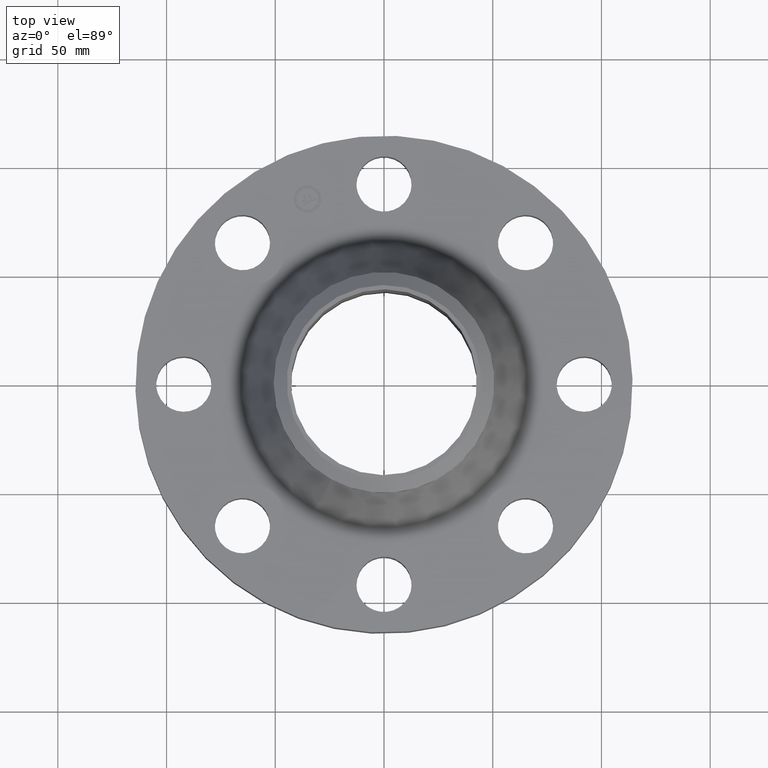
[diagram: clean part render]
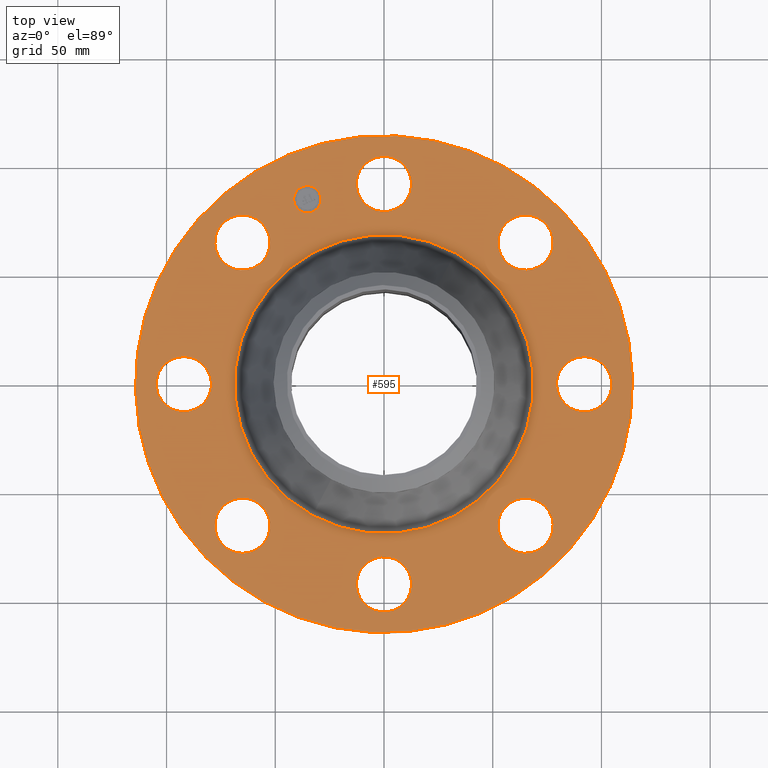
[diagram: same view with one face highlighted and labeled with its STEP entity id]
A machine part, top view. The second image highlights one B-rep face of the part: STEP entity #595.
In plain terms, the highlighted planar face has unit normal (0, 0, -1).
Its self-contained STEP definition (entity closure, byte-faithful):
#65=AXIS2_PLACEMENT_3D('Circle Axis2P3D',#63,#64,$) ;
#409=AXIS2_PLACEMENT_3D('Plane Axis2P3D',#406,#407,#408) ;
#413=AXIS2_PLACEMENT_3D('Circle Axis2P3D',#411,#412,$) ;
#422=AXIS2_PLACEMENT_3D('Circle Axis2P3D',#420,#421,$) ;
#435=AXIS2_PLACEMENT_3D('Circle Axis2P3D',#433,#434,$) ;
#444=AXIS2_PLACEMENT_3D('Circle Axis2P3D',#442,#443,$) ;
#453=AXIS2_PLACEMENT_3D('Circle Axis2P3D',#451,#452,$) ;
#462=AXIS2_PLACEMENT_3D('Circle Axis2P3D',#460,#461,$) ;
#471=AXIS2_PLACEMENT_3D('Circle Axis2P3D',#469,#470,$) ;
#480=AXIS2_PLACEMENT_3D('Circle Axis2P3D',#478,#479,$) ;
#489=AXIS2_PLACEMENT_3D('Circle Axis2P3D',#487,#488,$) ;
#498=AXIS2_PLACEMENT_3D('Circle Axis2P3D',#496,#497,$) ;
#507=AXIS2_PLACEMENT_3D('Circle Axis2P3D',#505,#506,$) ;
#516=AXIS2_PLACEMENT_3D('Circle Axis2P3D',#514,#515,$) ;
#525=AXIS2_PLACEMENT_3D('Circle Axis2P3D',#523,#524,$) ;
#534=AXIS2_PLACEMENT_3D('Circle Axis2P3D',#532,#533,$) ;
#543=AXIS2_PLACEMENT_3D('Circle Axis2P3D',#541,#542,$) ;
#552=AXIS2_PLACEMENT_3D('Circle Axis2P3D',#550,#551,$) ;
#561=AXIS2_PLACEMENT_3D('Circle Axis2P3D',#559,#560,$) ;
#570=AXIS2_PLACEMENT_3D('Circle Axis2P3D',#568,#569,$) ;
#579=AXIS2_PLACEMENT_3D('Circle Axis2P3D',#577,#578,$) ;
#588=AXIS2_PLACEMENT_3D('Circle Axis2P3D',#586,#587,$) ;
#46=CARTESIAN_POINT('Vertex',(-0.438791280947,3.86471276931,1.37999999999)) ;
#60=CARTESIAN_POINT('Vertex',(0.438791280948,3.38528723071,1.37999999999)) ;
#63=CARTESIAN_POINT('Axis2P3D Location',(0.,3.62500000001,1.37999999999)) ;
#107=CARTESIAN_POINT('Control Point',(0.438791280948,3.38528723071,1.37999999999)) ;
#108=CARTESIAN_POINT('Control Point',(0.401137287198,3.31636205747,1.37999999999)) ;
#109=CARTESIAN_POINT('Control Point',(0.34994986733,3.25483022862,1.37999999999)) ;
#110=CARTESIAN_POINT('Control Point',(0.287153775559,3.20424677248,1.37999999999)) ;
#111=CARTESIAN_POINT('Control Point',(0.145111459005,3.13042772369,1.37999999999)) ;
#112=CARTESIAN_POINT('Control Point',(-0.0142976312734,3.11579852021,1.38)) ;
#113=CARTESIAN_POINT('Control Point',(-0.0944690784492,3.12443415768,1.38)) ;
#114=CARTESIAN_POINT('Control Point',(-0.247106113686,3.17267529294,1.38)) ;
#115=CARTESIAN_POINT('Control Point',(-0.370169771387,3.27505013268,1.38)) ;
#116=CARTESIAN_POINT('Control Point',(-0.420753227527,3.33784622445,1.38)) ;
#117=CARTESIAN_POINT('Control Point',(-0.494572276324,3.47988854101,1.38)) ;
#118=CARTESIAN_POINT('Control Point',(-0.509201479801,3.63929763128,1.38000000001)) ;
#119=CARTESIAN_POINT('Control Point',(-0.500565842331,3.71946907846,1.38000000001)) ;
#120=CARTESIAN_POINT('Control Point',(-0.476445274698,3.79578759608,1.38000000001)) ;
#121=CARTESIAN_POINT('Control Point',(-0.438791280947,3.86471276931,1.38000000001)) ;
#406=CARTESIAN_POINT('Axis2P3D Location',(0.,4.50000000002,1.38000000001)) ;
#411=CARTESIAN_POINT('Axis2P3D Location',(1.1189649382E-015,-9.33216758463E-012,1.38000000001)) ;
#415=CARTESIAN_POINT('Vertex',(2.15741492373,3.94912152852,1.38)) ;
#417=CARTESIAN_POINT('Vertex',(-2.15741492373,-3.94912152852,1.38)) ;
#420=CARTESIAN_POINT('Axis2P3D Location',(-1.1189649382E-015,-9.33328654957E-012,1.38000000001)) ;
#433=CARTESIAN_POINT('Axis2P3D Location',(-5.59482469102E-016,-9.3327270671E-012,1.38000000001)) ;
#437=CARTESIAN_POINT('Vertex',(-1.29760486197,-2.37524976747,1.38000000001)) ;
#439=CARTESIAN_POINT('Vertex',(1.29760486197,2.37524976747,1.38000000001)) ;
#442=CARTESIAN_POINT('Axis2P3D Location',(5.59482469102E-016,-9.3327270671E-012,1.38000000001)) ;
#451=CARTESIAN_POINT('Axis2P3D Location',(2.56326208183,2.56326208184,1.38000000001)) ;
#455=CARTESIAN_POINT('Vertex',(2.70403184738,2.08348726682,1.37999999999)) ;
#457=CARTESIAN_POINT('Vertex',(2.42249231624,3.0430368968,1.37999999999)) ;
#460=CARTESIAN_POINT('Axis2P3D Location',(2.56326208183,2.56326208184,1.38000000001)) ;
#469=CARTESIAN_POINT('Axis2P3D Location',(3.62500000004,1.04779876814E-011,1.38000000001)) ;
#473=CARTESIAN_POINT('Vertex',(3.38528723071,-0.438791280948,1.37999999999)) ;
#475=CARTESIAN_POINT('Vertex',(3.86471276931,0.438791280947,1.37999999999)) ;
#478=CARTESIAN_POINT('Axis2P3D Location',(3.62500000001,2.7333516028E-011,1.38000000001)) ;
#487=CARTESIAN_POINT('Axis2P3D Location',(2.56326208183,-2.56326208177,1.38000000001)) ;
#491=CARTESIAN_POINT('Vertex',(2.08348726682,-2.70403184738,1.37999999999)) ;
#493=CARTESIAN_POINT('Vertex',(3.0430368968,-2.42249231624,1.37999999999)) ;
#496=CARTESIAN_POINT('Axis2P3D Location',(2.56326208183,-2.56326208177,1.38000000001)) ;
#505=CARTESIAN_POINT('Axis2P3D Location',(-2.38545316483E-011,-3.62500000006,1.38000000001)) ;
#509=CARTESIAN_POINT('Vertex',(-0.438791280948,-3.38528723071,1.37999999999)) ;
#511=CARTESIAN_POINT('Vertex',(0.438791280947,-3.86471276931,1.37999999999)) ;
#514=CARTESIAN_POINT('Axis2P3D Location',(2.38545316483E-011,-3.62499999997,1.38000000001)) ;
#523=CARTESIAN_POINT('Axis2P3D Location',(-2.56326208185,-2.56326208179,1.38000000001)) ;
#527=CARTESIAN_POINT('Vertex',(-2.70403184738,-2.08348726682,1.37999999999)) ;
#529=CARTESIAN_POINT('Vertex',(-2.42249231624,-3.0430368968,1.37999999999)) ;
#532=CARTESIAN_POINT('Axis2P3D Location',(-2.56326208185,-2.56326208179,1.38000000001)) ;
#541=CARTESIAN_POINT('Axis2P3D Location',(-3.62500000001,2.7333516028E-011,1.38000000001)) ;
#545=CARTESIAN_POINT('Vertex',(-3.38528723071,0.438791280948,1.37999999999)) ;
#547=CARTESIAN_POINT('Vertex',(-3.86471276931,-0.438791280947,1.37999999999)) ;
#550=CARTESIAN_POINT('Axis2P3D Location',(-3.62499999998,1.04779876814E-011,1.38000000001)) ;
#559=CARTESIAN_POINT('Axis2P3D Location',(-2.56326208185,2.56326208182,1.38000000001)) ;
#563=CARTESIAN_POINT('Vertex',(-2.08348726682,2.70403184738,1.37999999999)) ;
#565=CARTESIAN_POINT('Vertex',(-3.0430368968,2.42249231624,1.37999999999)) ;
#568=CARTESIAN_POINT('Axis2P3D Location',(-2.56326208185,2.56326208182,1.38000000001)) ;
#577=CARTESIAN_POINT('Axis2P3D Location',(-1.38722744233,3.34906330541,1.38000000001)) ;
#581=CARTESIAN_POINT('Vertex',(-1.61588762659,3.25434915588,1.38000000001)) ;
#583=CARTESIAN_POINT('Vertex',(-1.15856725803,3.44377745485,1.38000000001)) ;
#586=CARTESIAN_POINT('Axis2P3D Location',(-1.3872274423,3.34906330532,1.38000000001)) ;
#64=DIRECTION('Axis2P3D Direction',(0.,-0.,-0.0393700787402)) ;
#407=DIRECTION('Axis2P3D Direction',(0.,0.,-0.0393700787402)) ;
#408=DIRECTION('Axis2P3D XDirection',(0.0393700787402,0.,0.)) ;
#412=DIRECTION('Axis2P3D Direction',(0.,0.,-0.0393700787402)) ;
#421=DIRECTION('Axis2P3D Direction',(0.,0.,-0.0393700787402)) ;
#434=DIRECTION('Axis2P3D Direction',(0.,0.,-0.0393700787402)) ;
#443=DIRECTION('Axis2P3D Direction',(0.,0.,-0.0393700787402)) ;
#452=DIRECTION('Axis2P3D Direction',(0.,0.,-0.0393700787402)) ;
#461=DIRECTION('Axis2P3D Direction',(0.,0.,-0.0393700787402)) ;
#470=DIRECTION('Axis2P3D Direction',(0.,0.,-0.0393700787402)) ;
#479=DIRECTION('Axis2P3D Direction',(0.,0.,-0.0393700787402)) ;
#488=DIRECTION('Axis2P3D Direction',(0.,0.,-0.0393700787402)) ;
#497=DIRECTION('Axis2P3D Direction',(0.,0.,-0.0393700787402)) ;
#506=DIRECTION('Axis2P3D Direction',(0.,0.,-0.0393700787402)) ;
#515=DIRECTION('Axis2P3D Direction',(0.,0.,-0.0393700787402)) ;
#524=DIRECTION('Axis2P3D Direction',(0.,0.,-0.0393700787402)) ;
#533=DIRECTION('Axis2P3D Direction',(0.,0.,-0.0393700787402)) ;
#542=DIRECTION('Axis2P3D Direction',(0.,0.,-0.0393700787402)) ;
#551=DIRECTION('Axis2P3D Direction',(0.,0.,-0.0393700787402)) ;
#560=DIRECTION('Axis2P3D Direction',(0.,0.,-0.0393700787402)) ;
#569=DIRECTION('Axis2P3D Direction',(0.,0.,-0.0393700787402)) ;
#578=DIRECTION('Axis2P3D Direction',(0.,0.,-0.0393700787402)) ;
#587=DIRECTION('Axis2P3D Direction',(0.,0.,-0.0393700787402)) ;
#426=ORIENTED_EDGE('',*,*,#419,.F.) ;
#427=ORIENTED_EDGE('',*,*,#424,.F.) ;
#430=ORIENTED_EDGE('',*,*,#67,.T.) ;
#431=ORIENTED_EDGE('',*,*,#122,.T.) ;
#448=ORIENTED_EDGE('',*,*,#441,.T.) ;
#449=ORIENTED_EDGE('',*,*,#446,.T.) ;
#466=ORIENTED_EDGE('',*,*,#459,.T.) ;
#467=ORIENTED_EDGE('',*,*,#464,.T.) ;
#484=ORIENTED_EDGE('',*,*,#477,.T.) ;
#485=ORIENTED_EDGE('',*,*,#482,.T.) ;
#502=ORIENTED_EDGE('',*,*,#495,.T.) ;
#503=ORIENTED_EDGE('',*,*,#500,.T.) ;
#520=ORIENTED_EDGE('',*,*,#513,.T.) ;
#521=ORIENTED_EDGE('',*,*,#518,.T.) ;
#538=ORIENTED_EDGE('',*,*,#531,.T.) ;
#539=ORIENTED_EDGE('',*,*,#536,.T.) ;
#556=ORIENTED_EDGE('',*,*,#549,.T.) ;
#557=ORIENTED_EDGE('',*,*,#554,.T.) ;
#574=ORIENTED_EDGE('',*,*,#567,.T.) ;
#575=ORIENTED_EDGE('',*,*,#572,.T.) ;
#592=ORIENTED_EDGE('',*,*,#585,.T.) ;
#593=ORIENTED_EDGE('',*,*,#590,.T.) ;
#432=FACE_BOUND('',#429,.T.) ;
#450=FACE_BOUND('',#447,.T.) ;
#468=FACE_BOUND('',#465,.T.) ;
#486=FACE_BOUND('',#483,.T.) ;
#504=FACE_BOUND('',#501,.T.) ;
#522=FACE_BOUND('',#519,.T.) ;
#540=FACE_BOUND('',#537,.T.) ;
#558=FACE_BOUND('',#555,.T.) ;
#576=FACE_BOUND('',#573,.T.) ;
#594=FACE_BOUND('',#591,.T.) ;
#595=ADVANCED_FACE('PartBody',(#428,#432,#450,#468,#486,#504,#522,#540,#558,#576,#594),#410,.F.) ;
#106=B_SPLINE_CURVE_WITH_KNOTS('',5,(#107,#108,#109,#110,#111,#112,#113,#114,#115,#116,#117,#118,#119,#120,#121),.UNSPECIFIED.,.F.,.U.,(6,3,3,3,6),(-19.9491133504,-9.97455667521,0.,9.97455667521,19.9491133504),.UNSPECIFIED.) ;
#66=CIRCLE('generated circle',#65,0.500000000002) ;
#414=CIRCLE('generated circle',#413,4.50000000003) ;
#423=CIRCLE('generated circle',#422,4.50000000003) ;
#436=CIRCLE('generated circle',#435,2.70658268593) ;
#445=CIRCLE('generated circle',#444,2.70658268593) ;
#454=CIRCLE('generated circle',#453,0.5) ;
#463=CIRCLE('generated circle',#462,0.5) ;
#472=CIRCLE('generated circle',#471,0.500000000013) ;
#481=CIRCLE('generated circle',#480,0.500000000013) ;
#490=CIRCLE('generated circle',#489,0.5) ;
#499=CIRCLE('generated circle',#498,0.5) ;
#508=CIRCLE('generated circle',#507,0.500000000045) ;
#517=CIRCLE('generated circle',#516,0.500000000045) ;
#526=CIRCLE('generated circle',#525,0.5) ;
#535=CIRCLE('generated circle',#534,0.5) ;
#544=CIRCLE('generated circle',#543,0.500000000013) ;
#553=CIRCLE('generated circle',#552,0.500000000013) ;
#562=CIRCLE('generated circle',#561,0.5) ;
#571=CIRCLE('generated circle',#570,0.5) ;
#580=CIRCLE('generated circle',#579,0.247499999975) ;
#589=CIRCLE('generated circle',#588,0.247499999975) ;
#67=EDGE_CURVE('',#47,#61,#66,.T.) ;
#122=EDGE_CURVE('',#61,#47,#106,.T.) ;
#419=EDGE_CURVE('',#416,#418,#414,.T.) ;
#424=EDGE_CURVE('',#418,#416,#423,.T.) ;
#441=EDGE_CURVE('',#438,#440,#436,.T.) ;
#446=EDGE_CURVE('',#440,#438,#445,.T.) ;
#459=EDGE_CURVE('',#456,#458,#454,.T.) ;
#464=EDGE_CURVE('',#458,#456,#463,.T.) ;
#477=EDGE_CURVE('',#474,#476,#472,.T.) ;
#482=EDGE_CURVE('',#476,#474,#481,.T.) ;
#495=EDGE_CURVE('',#492,#494,#490,.T.) ;
#500=EDGE_CURVE('',#494,#492,#499,.T.) ;
#513=EDGE_CURVE('',#510,#512,#508,.T.) ;
#518=EDGE_CURVE('',#512,#510,#517,.T.) ;
#531=EDGE_CURVE('',#528,#530,#526,.T.) ;
#536=EDGE_CURVE('',#530,#528,#535,.T.) ;
#549=EDGE_CURVE('',#546,#548,#544,.T.) ;
#554=EDGE_CURVE('',#548,#546,#553,.T.) ;
#567=EDGE_CURVE('',#564,#566,#562,.T.) ;
#572=EDGE_CURVE('',#566,#564,#571,.T.) ;
#585=EDGE_CURVE('',#582,#584,#580,.T.) ;
#590=EDGE_CURVE('',#584,#582,#589,.T.) ;
#425=EDGE_LOOP('',(#426,#427)) ;
#429=EDGE_LOOP('',(#430,#431)) ;
#447=EDGE_LOOP('',(#448,#449)) ;
#465=EDGE_LOOP('',(#466,#467)) ;
#483=EDGE_LOOP('',(#484,#485)) ;
#501=EDGE_LOOP('',(#502,#503)) ;
#519=EDGE_LOOP('',(#520,#521)) ;
#537=EDGE_LOOP('',(#538,#539)) ;
#555=EDGE_LOOP('',(#556,#557)) ;
#573=EDGE_LOOP('',(#574,#575)) ;
#591=EDGE_LOOP('',(#592,#593)) ;
#428=FACE_OUTER_BOUND('',#425,.T.) ;
#410=PLANE('',#409) ;
#47=VERTEX_POINT('',#46) ;
#61=VERTEX_POINT('',#60) ;
#416=VERTEX_POINT('',#415) ;
#418=VERTEX_POINT('',#417) ;
#438=VERTEX_POINT('',#437) ;
#440=VERTEX_POINT('',#439) ;
#456=VERTEX_POINT('',#455) ;
#458=VERTEX_POINT('',#457) ;
#474=VERTEX_POINT('',#473) ;
#476=VERTEX_POINT('',#475) ;
#492=VERTEX_POINT('',#491) ;
#494=VERTEX_POINT('',#493) ;
#510=VERTEX_POINT('',#509) ;
#512=VERTEX_POINT('',#511) ;
#528=VERTEX_POINT('',#527) ;
#530=VERTEX_POINT('',#529) ;
#546=VERTEX_POINT('',#545) ;
#548=VERTEX_POINT('',#547) ;
#564=VERTEX_POINT('',#563) ;
#566=VERTEX_POINT('',#565) ;
#582=VERTEX_POINT('',#581) ;
#584=VERTEX_POINT('',#583) ;